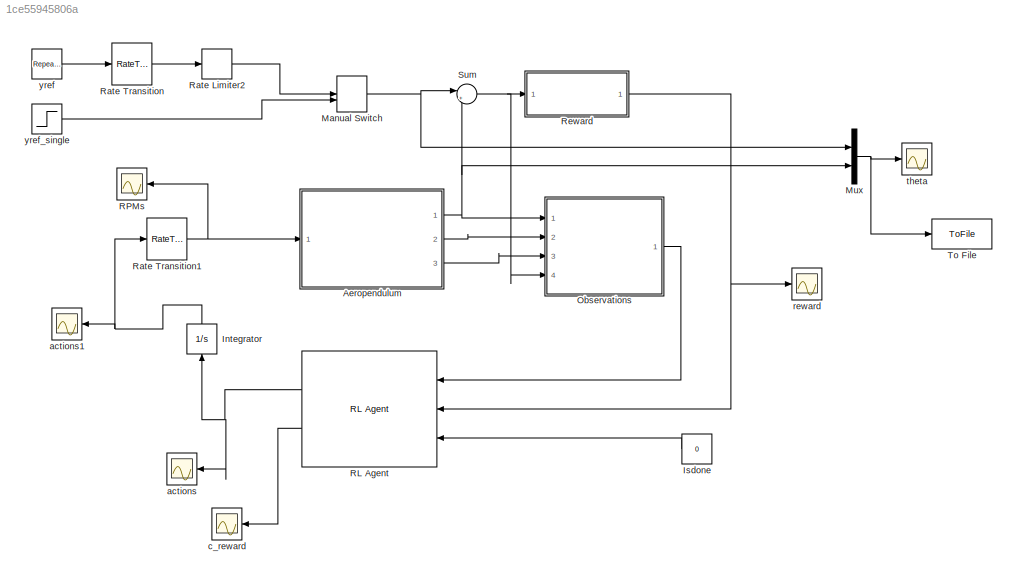
MODEL slx_1ce55945806a
KIND model
CONFIG AbsTol = auto
CONFIG EnableMultiTasking = off
CONFIG FixedStep = auto
CONFIG MaxStep = auto
CONFIG MinStep = auto
CONFIG RelTol = 1e-3
CONFIG SampleTimeConstraint = Unconstrained
CONFIG SolverName = VariableStepAuto
CONFIG StartTime = 0.0
CONFIG StopTime = 10
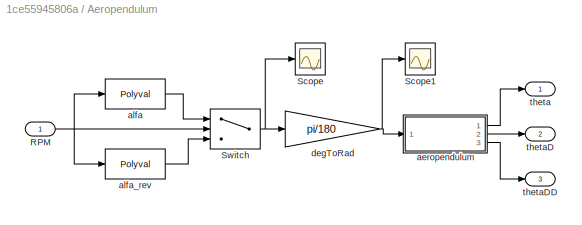
BLOCK [SubSystem] Aeropendulum
  Ports = [1, 3]
  RequestExecContextInheritance = off
BLOCK [Inport] Aeropendulum/RPM
BLOCK [Scope] Aeropendulum/Scope
  Floating = off
  NumInputPorts = 1
  Ports = [1]
  ScopeSpecificationString = Simulink.scopes.TimeScopeBlockCfg('CurrentConfiguration', extmgr.ConfigurationSet(extmgr.Configuration('Core','General UI',true),extmgr.Configuration('Core','Source UI',true),extmgr.Configuration('Sources','WiredSimulink',true,'DataLoggingVariableName','ScopeData1'),extmgr.Configuration('Visuals','Time Domain',true,'SerializedDisplays',{struct('MinYLimReal','-95.79137','MaxYLimReal','75.66645','YL...<+1396ch>
BLOCK [Scope] Aeropendulum/Scope1
  Floating = off
  NumInputPorts = 1
  Ports = [1]
  ScopeSpecificationString = Simulink.scopes.TimeScopeBlockCfg('CurrentConfiguration', extmgr.ConfigurationSet(extmgr.Configuration('Core','General UI',true),extmgr.Configuration('Core','Source UI',true),extmgr.Configuration('Sources','WiredSimulink',true,'DataLoggingVariableName','ScopeData2'),extmgr.Configuration('Visuals','Time Domain',true,'SerializedDisplays',{struct('MinYLimReal','-1.67187','MaxYLimReal','1.32063','YLab...<+1392ch>
BLOCK [Switch] Aeropendulum/Switch
  Criteria = u2 > Threshold
  InputSameDT = off
  SaturateOnIntegerOverflow = off
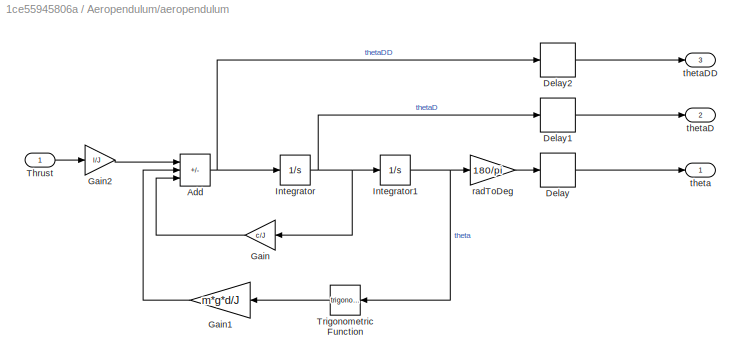
BLOCK [SubSystem] Aeropendulum/aeropendulum
  Ports = [1, 3]
  RequestExecContextInheritance = off
BLOCK [Sum] Aeropendulum/aeropendulum/Add
  IconShape = rectangular
  Inputs = +--
  Ports = [3, 1]
BLOCK [Delay] Aeropendulum/aeropendulum/Delay
  DelayLength = 1
  InitialCondition = 0
  InputPortMap = u0
  Ports = [1, 1]
BLOCK [Delay] Aeropendulum/aeropendulum/Delay1
  DelayLength = 1
  InitialCondition = 0
  InputPortMap = u0
  Ports = [1, 1]
BLOCK [Delay] Aeropendulum/aeropendulum/Delay2
  DelayLength = 1
  InitialCondition = 0
  InputPortMap = u0
  Ports = [1, 1]
BLOCK [Gain] Aeropendulum/aeropendulum/Gain
  Gain = c/J
BLOCK [Gain] Aeropendulum/aeropendulum/Gain1
  Gain = m*g*d/J
BLOCK [Gain] Aeropendulum/aeropendulum/Gain2
  Gain = l/J
BLOCK [Integrator] Aeropendulum/aeropendulum/Integrator
  Ports = [1, 1]
BLOCK [Integrator] Aeropendulum/aeropendulum/Integrator1
  Ports = [1, 1]
BLOCK [Inport] Aeropendulum/aeropendulum/Thrust
BLOCK [Trigonometry] Aeropendulum/aeropendulum/Trigonometric Function
  Ports = [1, 1]
BLOCK [Gain] Aeropendulum/aeropendulum/radToDeg
  Gain = 180/pi
BLOCK [Outport] Aeropendulum/aeropendulum/theta
BLOCK [Outport] Aeropendulum/aeropendulum/thetaD
  Port = 2
BLOCK [Outport] Aeropendulum/aeropendulum/thetaDD
  Port = 3
BLOCK [Polyval] Aeropendulum/alfa
  Coefs = [3.04986021927422e-06,  -0.00476887717971010 , 2.51670431281220]
BLOCK [Polyval] Aeropendulum/alfa_rev
  Coefs = [-5.46944010985214e-06,	-0.00938361577873603,	-2.43262552689868]
BLOCK [Gain] Aeropendulum/degToRad
  Gain = pi/180
BLOCK [Outport] Aeropendulum/theta
BLOCK [Outport] Aeropendulum/thetaD
  Port = 2
BLOCK [Outport] Aeropendulum/thetaDD
  Port = 3
BLOCK [Integrator] Integrator
  NameLocation = right
  Ports = [1, 1]
BLOCK [Constant] Isdone
  NameLocation = top
  SampleTime = Ts
  Value = 0
BLOCK [ManualSwitch] Manual Switch
  CurrentSetting = 0
BLOCK [Mux] Mux
  DisplayOption = bar
  Inputs = 2
  Ports = [2, 1]
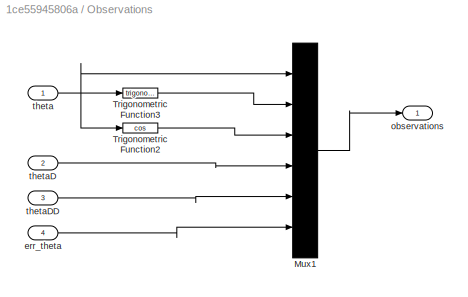
BLOCK [SubSystem] Observations
  Ports = [4, 1]
  RequestExecContextInheritance = off
BLOCK [Mux] Observations/Mux1
  DisplayOption = bar
  Inputs = 6
  Ports = [6, 1]
BLOCK [Trigonometry] Observations/Trigonometric Function2
  Operator = cos
  Ports = [1, 1]
BLOCK [Trigonometry] Observations/Trigonometric Function3
  Ports = [1, 1]
BLOCK [Inport] Observations/err_theta
  Port = 4
BLOCK [Outport] Observations/observations
BLOCK [Inport] Observations/theta
BLOCK [Inport] Observations/thetaD
  Port = 2
BLOCK [Inport] Observations/thetaDD
  Port = 3
BLOCK [Reference] RL Agent  REF=rllib/RL Agent
  Ports = [3, 2]
  SourceBlock = rllib/RL Agent
  SourceProductBaseCode = RL
  SourceType = RL Agent
BLOCK [Scope] RPMs
  Floating = off
  NameLocation = top
  NumInputPorts = 1
  Ports = [1]
  ScopeSpecificationString = Simulink.scopes.TimeScopeBlockCfg('CurrentConfiguration', extmgr.ConfigurationSet(extmgr.Configuration('Core','General UI',true),extmgr.Configuration('Core','Source UI',true),extmgr.Configuration('Sources','WiredSimulink',true,'DataLoggingVariableName','ScopeData3'),extmgr.Configuration('Visuals','Time Domain',true,'SerializedDisplays',{struct('MinYLimReal','-2081.25','MaxYLimReal','231.25','YLabe...<+1452ch>
BLOCK [RateLimiter] Rate Limiter2
  FallingSlewLimit = -Rs
  RisingSlewLimit = Rs
  SampleTimeMode = inherited
BLOCK [RateTransition] Rate Transition
  InitialCondition = 10
  OutPortSampleTime = Ts
BLOCK [RateTransition] Rate Transition1
  OutPortSampleTime = Ts
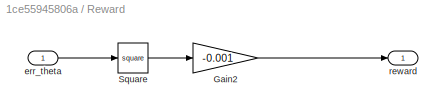
BLOCK [SubSystem] Reward
  Ports = [1, 1]
  RequestExecContextInheritance = off
BLOCK [Gain] Reward/Gain2
  Gain = -0.001
BLOCK [Math] Reward/Square
  Operator = square
  Ports = [1, 1]
BLOCK [Inport] Reward/err_theta
BLOCK [Outport] Reward/reward
BLOCK [Sum] Sum
  Inputs = |+-
  Ports = [2, 1]
BLOCK [ToFile] To File
  Filename = PPO_2_f.mat
  MatrixName = agent_theta
  Ports = [1]
  SaveFormat = Timeseries
BLOCK [Scope] actions
  Floating = off
  NameLocation = top
  NumInputPorts = 1
  Ports = [1]
  ScopeSpecificationString = Simulink.scopes.TimeScopeBlockCfg('CurrentConfiguration', extmgr.ConfigurationSet(extmgr.Configuration('Core','General UI',true),extmgr.Configuration('Core','Source UI',true),extmgr.Configuration('Sources','WiredSimulink',true,'DataLoggingVariableName','ScopeData1'),extmgr.Configuration('Visuals','Time Domain',true,'SerializedDisplays',{struct('MinYLimReal','-2750.00000','MaxYLimReal','4750.00000'...<+1471ch>
BLOCK [Scope] actions1
  Floating = off
  NameLocation = top
  NumInputPorts = 1
  Ports = [1]
  ScopeSpecificationString = Simulink.scopes.TimeScopeBlockCfg('CurrentConfiguration', extmgr.ConfigurationSet(extmgr.Configuration('Core','General UI',true),extmgr.Configuration('Core','Source UI',true),extmgr.Configuration('Sources','WiredSimulink',true,'DataLoggingVariableName','ScopeData2'),extmgr.Configuration('Visuals','Time Domain',true,'SerializedDisplays',{struct('MinYLimReal','-2081.25','MaxYLimReal','231.25','YLabe...<+1452ch>
BLOCK [Scope] c_reward
  Floating = off
  NameLocation = top
  NumInputPorts = 1
  Ports = [1]
  ScopeSpecificationString = Simulink.scopes.TimeScopeBlockCfg('CurrentConfiguration', extmgr.ConfigurationSet(extmgr.Configuration('Core','General UI',true),extmgr.Configuration('Core','Source UI',true),extmgr.Configuration('Sources','WiredSimulink',true,'DataLoggingVariableName','ScopeData5'),extmgr.Configuration('Visuals','Time Domain',true,'SerializedDisplays',{struct('MinYLimReal','-144.90624','MaxYLimReal','16.10069','Y...<+1458ch>
BLOCK [Scope] reward
  Floating = off
  NumInputPorts = 1
  Ports = [1]
  ScopeSpecificationString = Simulink.scopes.TimeScopeBlockCfg('CurrentConfiguration', extmgr.ConfigurationSet(extmgr.Configuration('Core','General UI',true),extmgr.Configuration('Core','Source UI',true),extmgr.Configuration('Sources','WiredSimulink',true,'DataLoggingVariableName','ScopeData3'),extmgr.Configuration('Visuals','Time Domain',true,'SerializedDisplays',{struct('MinYLimReal','-36.17341','MaxYLimReal','4.01926','YLa...<+1442ch>
BLOCK [Scope] theta
  Floating = off
  NumInputPorts = 1
  Ports = [1]
  ScopeSpecificationString = Simulink.scopes.TimeScopeBlockCfg('CurrentConfiguration', extmgr.ConfigurationSet(extmgr.Configuration('Core','General UI',true),extmgr.Configuration('Core','Source UI',true),extmgr.Configuration('Sources','WiredSimulink',true,'DataLoggingVariableName','ScopeData4'),extmgr.Configuration('Visuals','Time Domain',true,'SerializedDisplays',{struct('MinYLimReal','-4.44378','MaxYLimReal','39.91293','YLa...<+1472ch>
BLOCK [Reference] yref  REF=simulink/Sources/Repeating
Sequence
Stair
  Ports = [0, 1]
  SourceBlock = simulink/Sources/Repeating\nSequence\nStair
  SourceProductBaseCode = SL
  SourceType = Repeating Sequence Stair
BLOCK [Step] yref_single
  After = yref
  SampleTime = Ts
  Time = 0
NET Aeropendulum/RPM:1 -> Aeropendulum/Switch:2, Aeropendulum/alfa:1, Aeropendulum/alfa_rev:1
NET Aeropendulum/Switch:1 -> Aeropendulum/Scope:1, Aeropendulum/degToRad:1
NET Aeropendulum/aeropendulum/Add:1 -> Aeropendulum/aeropendulum/Delay2:1, Aeropendulum/aeropendulum/Integrator:1
LINE Aeropendulum/aeropendulum/Delay1:1 -> Aeropendulum/aeropendulum/thetaD:1
LINE Aeropendulum/aeropendulum/Delay2:1 -> Aeropendulum/aeropendulum/thetaDD:1
LINE Aeropendulum/aeropendulum/Delay:1 -> Aeropendulum/aeropendulum/theta:1
LINE Aeropendulum/aeropendulum/Gain1:1 -> Aeropendulum/aeropendulum/Add:2
LINE Aeropendulum/aeropendulum/Gain2:1 -> Aeropendulum/aeropendulum/Add:1
LINE Aeropendulum/aeropendulum/Gain:1 -> Aeropendulum/aeropendulum/Add:3
NET Aeropendulum/aeropendulum/Integrator1:1 -> Aeropendulum/aeropendulum/Trigonometric Function:1, Aeropendulum/aeropendulum/radToDeg:1
NET Aeropendulum/aeropendulum/Integrator:1 -> Aeropendulum/aeropendulum/Delay1:1, Aeropendulum/aeropendulum/Gain:1, Aeropendulum/aeropendulum/Integrator1:1
LINE Aeropendulum/aeropendulum/Thrust:1 -> Aeropendulum/aeropendulum/Gain2:1
LINE Aeropendulum/aeropendulum/Trigonometric Function:1 -> Aeropendulum/aeropendulum/Gain1:1
LINE Aeropendulum/aeropendulum/radToDeg:1 -> Aeropendulum/aeropendulum/Delay:1
LINE Aeropendulum/aeropendulum:1 -> Aeropendulum/theta:1
LINE Aeropendulum/aeropendulum:2 -> Aeropendulum/thetaD:1
LINE Aeropendulum/aeropendulum:3 -> Aeropendulum/thetaDD:1
LINE Aeropendulum/alfa:1 -> Aeropendulum/Switch:1
LINE Aeropendulum/alfa_rev:1 -> Aeropendulum/Switch:3
NET Aeropendulum/degToRad:1 -> Aeropendulum/Scope1:1, Aeropendulum/aeropendulum:1
NET Aeropendulum:1 -> Mux:2, Observations:1, Sum:2
LINE Aeropendulum:2 -> Observations:2
LINE Aeropendulum:3 -> Observations:3
NET Integrator:1 -> Rate Transition1:1, actions1:1
LINE Isdone:1 -> RL Agent:3
NET Manual Switch:1 -> Mux:1, Sum:1
NET Mux:1 -> To File:1, theta:1
LINE Observations/Mux1:1 -> Observations/observations:1
LINE Observations/Trigonometric Function2:1 -> Observations/Mux1:3
LINE Observations/Trigonometric Function3:1 -> Observations/Mux1:2
LINE Observations/err_theta:1 -> Observations/Mux1:6
NET Observations/theta:1 -> Observations/Mux1:1, Observations/Trigonometric Function2:1, Observations/Trigonometric Function3:1
LINE Observations/thetaD:1 -> Observations/Mux1:4
LINE Observations/thetaDD:1 -> Observations/Mux1:5
LINE Observations:1 -> RL Agent:1
NET RL Agent:1 -> Integrator:1, actions:1
LINE RL Agent:2 -> c_reward:1
LINE Rate Limiter2:1 -> Manual Switch:1
NET Rate Transition1:1 -> Aeropendulum:1, RPMs:1
LINE Rate Transition:1 -> Rate Limiter2:1
LINE Reward/Gain2:1 -> Reward/reward:1
LINE Reward/Square:1 -> Reward/Gain2:1
LINE Reward/err_theta:1 -> Reward/Square:1
NET Reward:1 -> RL Agent:2, reward:1
NET Sum:1 -> Observations:4, Reward:1
LINE yref:1 -> Rate Transition:1
LINE yref_single:1 -> Manual Switch:2
note: NET lines group one-source signal fan-out (src -> all destinations, sorted); 1:1 wires keep LINE
